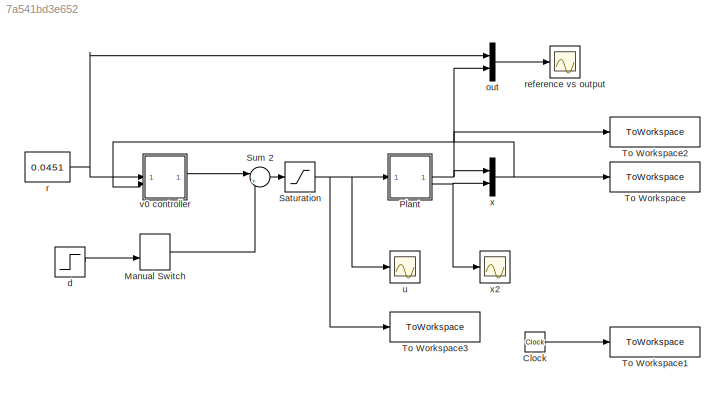
MODEL slx_7a541bd3e652
KIND model
CONFIG AbsTol = auto
CONFIG EnableMultiTasking = off
CONFIG FixedStep = auto
CONFIG MaxStep = auto
CONFIG MinStep = auto
CONFIG RelTol = 1e-10
CONFIG SampleTimeConstraint = Unconstrained
CONFIG SolverName = VariableStepAuto
CONFIG StartTime = 0.0
CONFIG StopTime = 150
BLOCK [Clock] Clock
BLOCK [ManualSwitch] Manual Switch
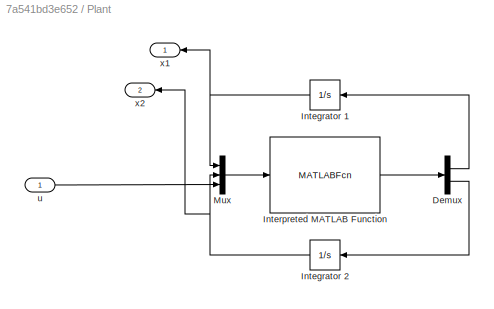
BLOCK [SubSystem] Plant
BLOCK [Demux] Plant/Demux
  Outputs = 2
BLOCK [Integrator] Plant/Integrator 1
  InitialCondition = x1_0
  NameLocation = top
BLOCK [Integrator] Plant/Integrator 2
  InitialCondition = x2_0
  NameLocation = top
BLOCK [MATLABFcn] Plant/Interpreted MATLAB Function
  MATLABFcn = SYS
  OutputDimensions = 2
BLOCK [Mux] Plant/Mux
  DisplayOption = bar
  Inputs = 3
BLOCK [Inport] Plant/u
BLOCK [Outport] Plant/x1
BLOCK [Outport] Plant/x2
  Port = 2
BLOCK [Saturate] Saturation
  LowerLimit = 0
  UpperLimit = +inf
BLOCK [Sum] Sum 2
  Inputs = |++
  NameLocation = top
BLOCK [ToWorkspace] To Workspace
  FixptAsFi = on
  MaxDataPoints = inf
  SampleTime = -1
  VariableName = x
BLOCK [ToWorkspace] To Workspace1
  FixptAsFi = on
  MaxDataPoints = inf
  SampleTime = -1
  SaveFormat = Timeseries
  VariableName = t
BLOCK [ToWorkspace] To Workspace2
  FixptAsFi = on
  MaxDataPoints = inf
  SampleTime = -1
  VariableName = y
BLOCK [ToWorkspace] To Workspace3
  FixptAsFi = on
  MaxDataPoints = inf
  SampleTime = -1
  VariableName = u
BLOCK [Step] d
  After = 20000
  SampleTime = 0
  Time = 0.5
BLOCK [Mux] out
  DisplayOption = bar
  Inputs = 2
BLOCK [Constant] r
  Value = 0.0451
BLOCK [Scope] reference vs output
  Floating = off
  NumInputPorts = 1
  ScopeSpecificationString = Simulink.scopes.TimeScopeBlockCfg('CurrentConfiguration', extmgr.ConfigurationSet(extmgr.Configuration('Core','General UI',true),extmgr.Configuration('Core','Source UI',true),extmgr.Configuration('Sources','WiredSimulink',true),extmgr.Configuration('Visuals','Time Domain',true,'SerializedDisplays',{struct('MinYLimReal','-0.01147','MaxYLimReal','0.11239','YLabelReal','','MinYLimMag','0.00000','MaxY...<+1623ch>
BLOCK [Scope] u
  Floating = off
  NumInputPorts = 1
  ScopeSpecificationString = Simulink.scopes.TimeScopeBlockCfg('CurrentConfiguration', extmgr.ConfigurationSet(extmgr.Configuration('Core','General UI',true),extmgr.Configuration('Core','Source UI',true),extmgr.Configuration('Sources','WiredSimulink',true,'DataLoggingVariableName','ScopeData2'),extmgr.Configuration('Visuals','Time Domain',true,'SerializedDisplays',{struct('MinYLimReal','-132348.68026','MaxYLimReal','116219.33...<+1877ch>
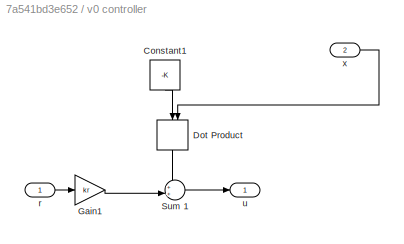
BLOCK [SubSystem] v0 controller
BLOCK [Constant] v0 controller/Constant1
  NameLocation = left
  Value = -K
BLOCK [DotProduct] v0 controller/Dot Product
  NameLocation = left
  OutDataTypeStr = Inherit: Inherit via internal rule
BLOCK [Gain] v0 controller/Gain1
  Gain = kr
BLOCK [Sum] v0 controller/Sum 1
  Inputs = ++|
BLOCK [Inport] v0 controller/r
BLOCK [Outport] v0 controller/u
BLOCK [Inport] v0 controller/x
  Port = 2
BLOCK [Mux] x
  DisplayOption = bar
  Inputs = 2
BLOCK [Scope] x2
  Floating = off
  NumInputPorts = 1
  ScopeSpecificationString = Simulink.scopes.TimeScopeBlockCfg('CurrentConfiguration', extmgr.ConfigurationSet(extmgr.Configuration('Core','General UI',true),extmgr.Configuration('Core','Source UI',true),extmgr.Configuration('Sources','WiredSimulink',true,'DataLoggingVariableName','ScopeData1'),extmgr.Configuration('Visuals','Time Domain',true,'SerializedDisplays',{struct('MinYLimReal','-34.94544','MaxYLimReal','112.42327','Y...<+1825ch>
LINE Clock:1 -> To Workspace1:1
LINE Manual Switch:1 -> Sum 2:2
LINE Plant/Demux:1 -> Plant/Integrator 1:1
LINE Plant/Demux:2 -> Plant/Integrator 2:1
NET Plant/Integrator 1:1 -> Plant/Mux:1, Plant/x1:1
NET Plant/Integrator 2:1 -> Plant/Mux:2, Plant/x2:1
LINE Plant/Interpreted MATLAB Function:1 -> Plant/Demux:1
LINE Plant/Mux:1 -> Plant/Interpreted MATLAB Function:1
LINE Plant/u:1 -> Plant/Mux:3
NET Plant:1 -> To Workspace2:1, out:2, x:1
NET Plant:2 -> x2:1, x:2
NET Saturation:1 -> Plant:1, To Workspace3:1, u:1
LINE Sum 2:1 -> Saturation:1
LINE d:1 -> Manual Switch:2
LINE out:1 -> reference vs output:1
NET r:1 -> out:1, v0 controller:1
LINE v0 controller/Constant1:1 -> v0 controller/Dot Product:1
LINE v0 controller/Dot Product:1 -> v0 controller/Sum 1:1
LINE v0 controller/Gain1:1 -> v0 controller/Sum 1:2
LINE v0 controller/Sum 1:1 -> v0 controller/u:1
LINE v0 controller/r:1 -> v0 controller/Gain1:1
LINE v0 controller/x:1 -> v0 controller/Dot Product:2
LINE v0 controller:1 -> Sum 2:1
NET x:1 -> To Workspace:1, v0 controller:2
note: NET lines group one-source signal fan-out (src -> all destinations, sorted); 1:1 wires keep LINE
